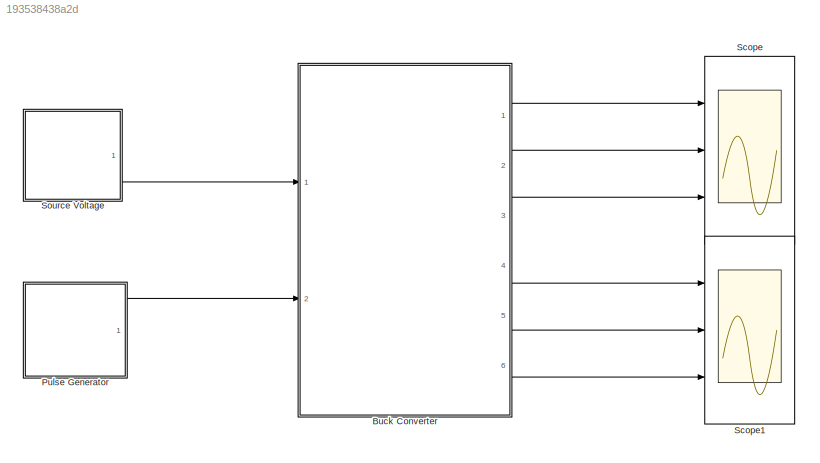
MODEL slx_193538438a2d
KIND model
CONFIG AbsTol = auto
CONFIG FixedStep = auto
CONFIG MaxStep = auto
CONFIG MinStep = auto
CONFIG RelTol = 1e-3
CONFIG SampleTimeConstraint = Unconstrained
CONFIG Solver = ode45
CONFIG SolverMode = Auto
CONFIG SolverName = ode45
CONFIG StartTime = 0.0
CONFIG StopTime = 0.01
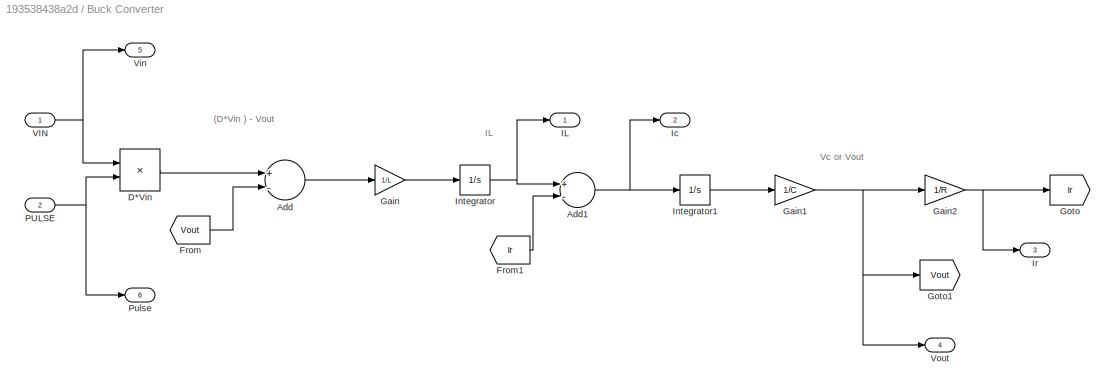
BLOCK [SubSystem] Buck Converter
  Ports = [2, 6]
  RequestExecContextInheritance = off
  TreatAsAtomicUnit = on
BLOCK [Sum] Buck Converter/Add
  InputSameDT = off
  Inputs = +-
  OutDataTypeStr = Inherit: Inherit via internal rule
  Ports = [2, 1]
  SaturateOnIntegerOverflow = off
BLOCK [Sum] Buck Converter/Add1
  InputSameDT = off
  Inputs = +-
  OutDataTypeStr = Inherit: Inherit via internal rule
  Ports = [2, 1]
  SaturateOnIntegerOverflow = off
BLOCK [Product] Buck Converter/D*Vin
  InputSameDT = off
  OutDataTypeStr = Inherit: Inherit via internal rule
  Ports = [2, 1]
  RndMeth = Floor
  SaturateOnIntegerOverflow = off
BLOCK [From] Buck Converter/From
  GotoTag = Vout
BLOCK [From] Buck Converter/From1
  GotoTag = Ir
BLOCK [Gain] Buck Converter/Gain
  Gain = 1/L
  OutDataTypeStr = Inherit: Inherit via internal rule
  ParamDataTypeStr = Inherit: Inherit via internal rule
  SaturateOnIntegerOverflow = off
BLOCK [Gain] Buck Converter/Gain1
  Gain = 1/C
  OutDataTypeStr = Inherit: Inherit via internal rule
  ParamDataTypeStr = Inherit: Inherit via internal rule
  SaturateOnIntegerOverflow = off
BLOCK [Gain] Buck Converter/Gain2
  Gain = 1/R
  OutDataTypeStr = Inherit: Inherit via internal rule
  ParamDataTypeStr = Inherit: Inherit via internal rule
  SaturateOnIntegerOverflow = off
BLOCK [Goto] Buck Converter/Goto
  GotoTag = Ir
BLOCK [Goto] Buck Converter/Goto1
  GotoTag = Vout
BLOCK [Outport] Buck Converter/IL
  IconDisplay = Port number
BLOCK [Outport] Buck Converter/Ic
  IconDisplay = Port number
  Port = 2
BLOCK [Integrator] Buck Converter/Integrator
  Ports = [1, 1]
BLOCK [Integrator] Buck Converter/Integrator1
  Ports = [1, 1]
BLOCK [Outport] Buck Converter/Ir
  IconDisplay = Port number
  Port = 3
BLOCK [Inport] Buck Converter/PULSE
  IconDisplay = Port number
  Port = 2
BLOCK [Outport] Buck Converter/Pulse
  IconDisplay = Port number
  Port = 6
BLOCK [Inport] Buck Converter/VIN
  IconDisplay = Port number
BLOCK [Outport] Buck Converter/Vin
  IconDisplay = Port number
  Port = 5
BLOCK [Outport] Buck Converter/Vout
  IconDisplay = Port number
  Port = 4
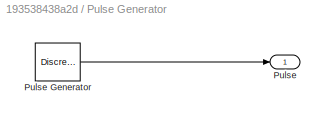
BLOCK [SubSystem] Pulse Generator
  Ports = [0, 1]
  RequestExecContextInheritance = off
  TreatAsAtomicUnit = on
BLOCK [Outport] Pulse Generator/Pulse
  IconDisplay = Port number
BLOCK [DiscretePulseGenerator] Pulse Generator/Pulse Generator
  Period = 1/Fsw
  Ports = [0, 1]
  PulseType = Time based
  PulseWidth = D*100
BLOCK [Scope] Scope
  Floating = off
  LimitDataPoints = off
  NumInputPorts = 3
  Ports = [3]
  YMax = 5~5~5
  YMin = -5~-5~-5
BLOCK [Scope] Scope1
  Floating = off
  LimitDataPoints = off
  NumInputPorts = 3
  Ports = [3]
  SaveName = ScopeData1
  YMax = 5~5~5
  YMin = -5~-5~-5
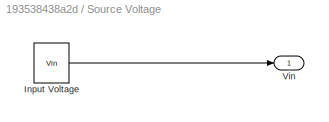
BLOCK [SubSystem] Source Voltage
  Ports = [0, 1]
  RequestExecContextInheritance = off
  TreatAsAtomicUnit = on
BLOCK [Constant] Source Voltage/Input Voltage
  Value = Vin
BLOCK [Outport] Source Voltage/Vin
  IconDisplay = Port number
ANNOTATION Buck Converter: (D*Vin ) - Vout
ANNOTATION Buck Converter: Vc or Vout
ANNOTATION Buck Converter: IL
NET Buck Converter/Add1:1 -> Buck Converter/Ic:1, Buck Converter/Integrator1:1
LINE Buck Converter/Add:1 -> Buck Converter/Gain:1
LINE Buck Converter/D*Vin:1 -> Buck Converter/Add:1
LINE Buck Converter/From1:1 -> Buck Converter/Add1:2
LINE Buck Converter/From:1 -> Buck Converter/Add:2
NET Buck Converter/Gain1:1 -> Buck Converter/Gain2:1, Buck Converter/Goto1:1, Buck Converter/Vout:1
NET Buck Converter/Gain2:1 -> Buck Converter/Goto:1, Buck Converter/Ir:1
LINE Buck Converter/Gain:1 -> Buck Converter/Integrator:1
LINE Buck Converter/Integrator1:1 -> Buck Converter/Gain1:1
NET Buck Converter/Integrator:1 -> Buck Converter/Add1:1, Buck Converter/IL:1
NET Buck Converter/PULSE:1 -> Buck Converter/D*Vin:2, Buck Converter/Pulse:1
NET Buck Converter/VIN:1 -> Buck Converter/D*Vin:1, Buck Converter/Vin:1
LINE Buck Converter:1 -> Scope:1
LINE Buck Converter:2 -> Scope:2
LINE Buck Converter:3 -> Scope:3
LINE Buck Converter:4 -> Scope1:1
LINE Buck Converter:5 -> Scope1:2
LINE Buck Converter:6 -> Scope1:3
LINE Pulse Generator/Pulse Generator:1 -> Pulse Generator/Pulse:1
LINE Pulse Generator:1 -> Buck Converter:2
LINE Source Voltage/Input Voltage:1 -> Source Voltage/Vin:1
LINE Source Voltage:1 -> Buck Converter:1
note: NET lines group one-source signal fan-out (src -> all destinations, sorted); 1:1 wires keep LINE
